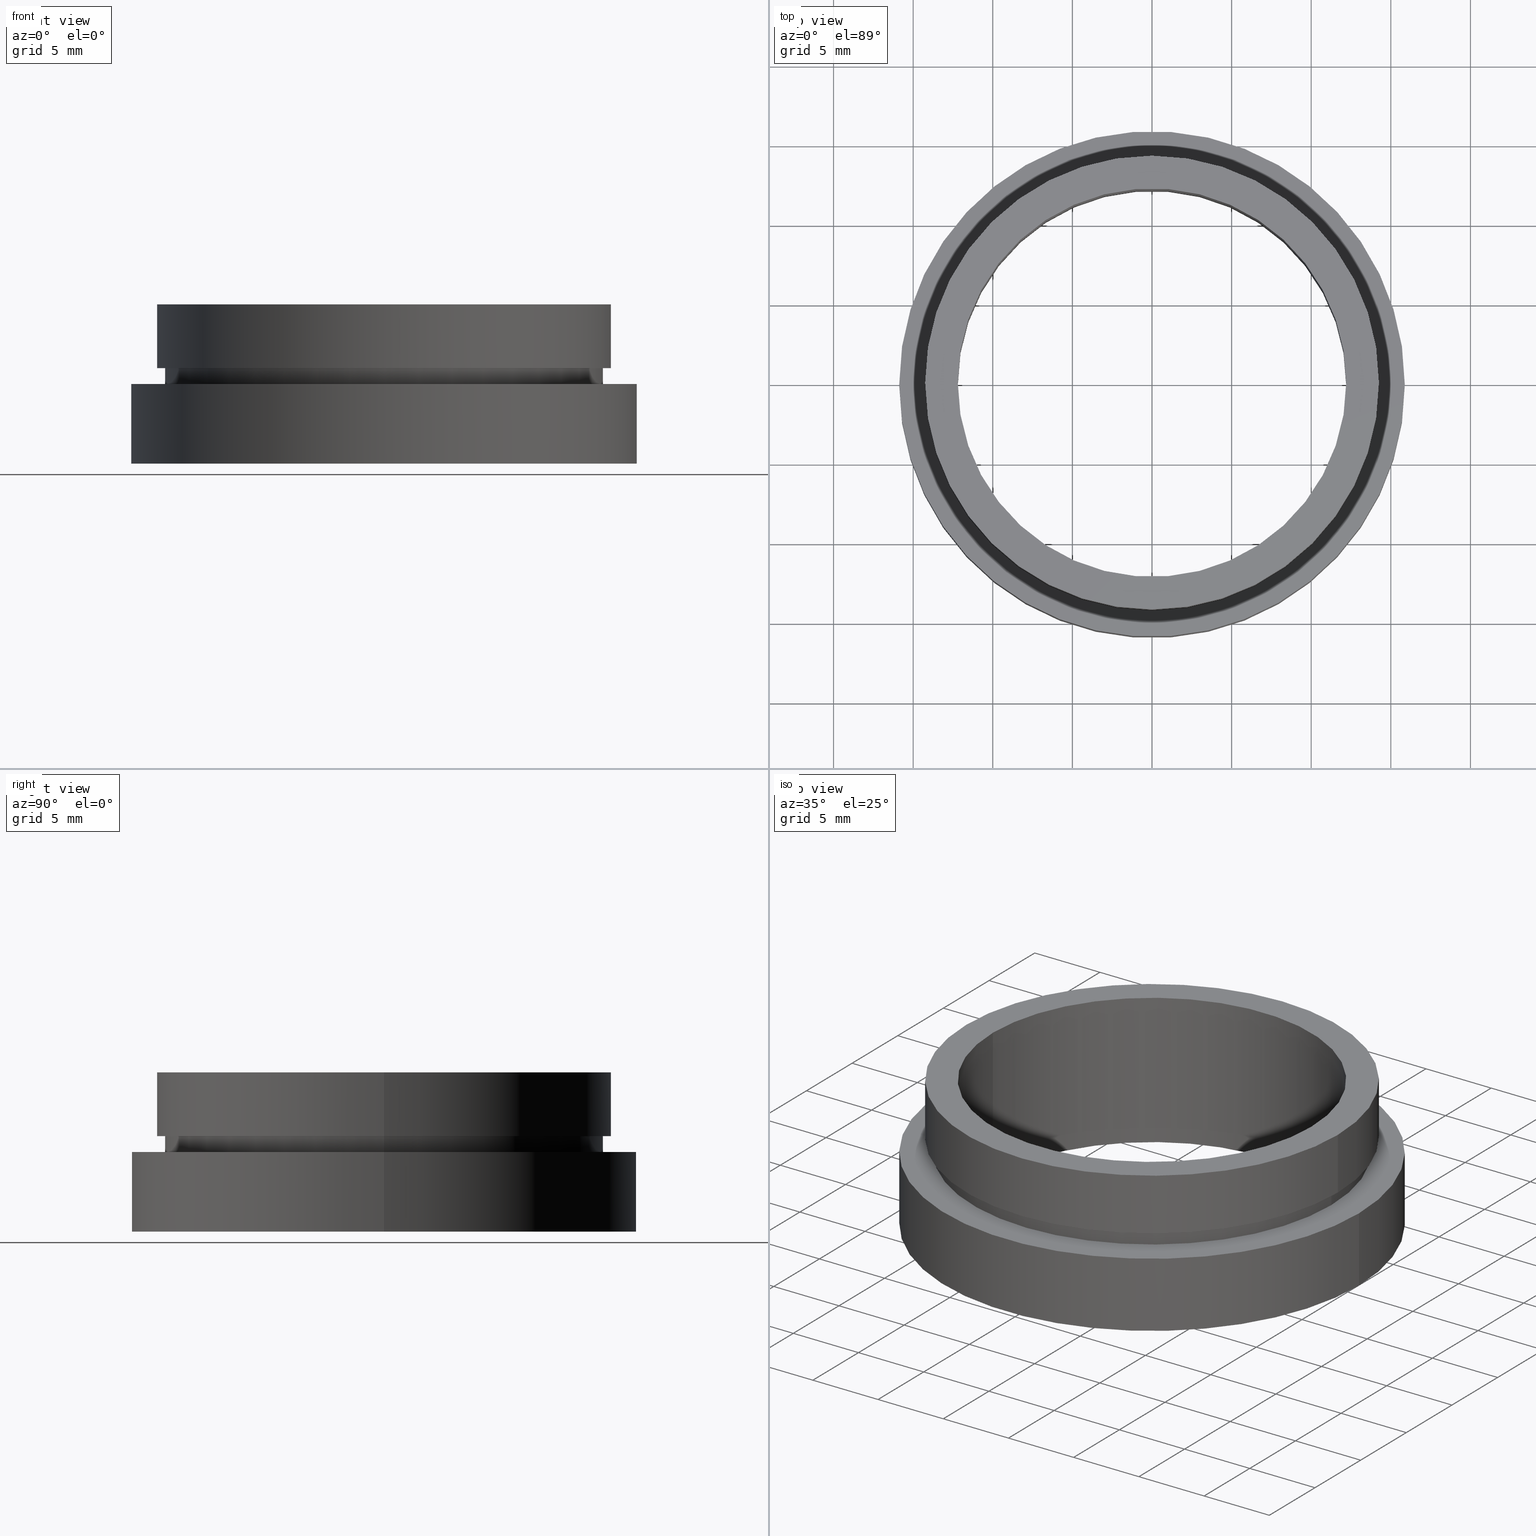
[diagram: canonical four-view strip — front | top / right | iso, engineering-drawing reading convention]
A machine part, canonical four-view strip (front | top / right | iso — engineering-drawing reading convention). The complete STEP part file that produces these views, byte-faithful:
ISO-10303-21;
HEADER;
FILE_DESCRIPTION (( 'STEP AP214' ),
    '1' );
FILE_NAME ('504062.STEP',
    '2019-09-16T03:55:55',
    ( 'user' ),
    ( '΢���й�' ),
    'SwSTEP 2.0',
    'SolidWorks 2016',
    '' );
FILE_SCHEMA (( 'AUTOMOTIVE_DESIGN' ));
ENDSEC;

DATA;
#1 = ADVANCED_FACE ( 'NONE', ( #73 ), #62, .T. ) ;
#2 = EDGE_LOOP ( 'NONE', ( #157, #179, #164, #184 ) ) ;
#3 = CARTESIAN_POINT ( 'NONE',  ( 13.75000000000000400, 1.683889348827611200E-015, -5.000000000000000900 ) ) ;
#4 =( GEOMETRIC_REPRESENTATION_CONTEXT ( 3 ) GLOBAL_UNCERTAINTY_ASSIGNED_CONTEXT ( ( #98 ) ) GLOBAL_UNIT_ASSIGNED_CONTEXT ( ( #260, #259, #276 ) ) REPRESENTATION_CONTEXT ( 'NONE', 'WORKASPACE' ) );
#5 =( GEOMETRIC_REPRESENTATION_CONTEXT ( 3 ) GLOBAL_UNCERTAINTY_ASSIGNED_CONTEXT ( ( #13 ) ) GLOBAL_UNIT_ASSIGNED_CONTEXT ( ( #56, #79, #415 ) ) REPRESENTATION_CONTEXT ( 'NONE', 'WORKASPACE' ) );
#6 = ORIENTED_EDGE ( 'NONE', *, *, #264, .T. ) ;
#7 = PRESENTATION_LAYER_ASSIGNMENT (  '', '', ( #180 ) ) ;
#8 = CIRCLE ( 'NONE', #258, 14.25000000000000400 ) ;
#9 = ORIENTED_EDGE ( 'NONE', *, *, #334, .T. ) ;
#10 = CYLINDRICAL_SURFACE ( 'NONE', #194, 12.20000000000000100 ) ;
#11 = CARTESIAN_POINT ( 'NONE',  ( 12.20000000000000100, 1.494069094959771100E-015, -19.14057971014493000 ) ) ;
#12 = ADVANCED_FACE ( 'NONE', ( #68, #54 ), #316, .F. ) ;
#13 = UNCERTAINTY_MEASURE_WITH_UNIT (LENGTH_MEASURE( 1.000000000000000100E-005 ), #56, 'distance_accuracy_value', 'NONE');
#14 = FACE_OUTER_BOUND ( 'NONE', #2, .T. ) ;
#15 = CARTESIAN_POINT ( 'NONE',  ( -15.87500000000000000, 0.0000000000000000000, -10.00000000000000000 ) ) ;
#16 = EDGE_LOOP ( 'NONE', ( #151, #156, #163, #170 ) ) ;
#17 = AXIS2_PLACEMENT_3D ( 'NONE', #297, #355, #237 ) ;
#18 = CARTESIAN_POINT ( 'NONE',  ( 0.0000000000000000000, 0.0000000000000000000, 0.0000000000000000000 ) ) ;
#19 = DIRECTION ( 'NONE',  ( 1.000000000000000000, 0.0000000000000000000, -0.0000000000000000000 ) ) ;
#20 = DIRECTION ( 'NONE',  ( -1.000000000000000000, 0.0000000000000000000, 0.0000000000000000000 ) ) ;
#21 = FILL_AREA_STYLE ('',( #343 ) ) ;
#22 = VERTEX_POINT ( 'NONE', #3 ) ;
#23 = FACE_BOUND ( 'NONE', #214, .T. ) ;
#24 =( LENGTH_UNIT ( ) NAMED_UNIT ( * ) SI_UNIT ( .MILLI., .METRE. ) );
#25 = LINE ( 'NONE', #352, #423 ) ;
#26 = AXIS2_PLACEMENT_3D ( 'NONE', #91, #193, #238 ) ;
#27 = ORIENTED_EDGE ( 'NONE', *, *, #162, .T. ) ;
#28 = DIRECTION ( 'NONE',  ( -0.0000000000000000000, -0.0000000000000000000, -1.000000000000000000 ) ) ;
#29 = CARTESIAN_POINT ( 'NONE',  ( 15.87500000000000000, 0.0000000000000000000, -10.00000000000000000 ) ) ;
#30 = FILL_AREA_STYLE_COLOUR ( '', #228 ) ;
#31 = CYLINDRICAL_SURFACE ( 'NONE', #36, 12.20000000000000100 ) ;
#32 = EDGE_CURVE ( 'NONE', #361, #99, #381, .T. ) ;
#33 = AXIS2_PLACEMENT_3D ( 'NONE', #75, #77, #338 ) ;
#34 = CARTESIAN_POINT ( 'NONE',  ( 13.75000000000000400, 0.0000000000000000000, -5.000000000000000000 ) ) ;
#35 = SURFACE_SIDE_STYLE ('',( #74 ) ) ;
#36 = AXIS2_PLACEMENT_3D ( 'NONE', #134, #405, #135 ) ;
#37 = ADVANCED_FACE ( 'NONE', ( #226 ), #234, .T. ) ;
#38 = CARTESIAN_POINT ( 'NONE',  ( 0.0000000000000000000, 0.0000000000000000000, -19.14057971014493000 ) ) ;
#39 = VERTEX_POINT ( 'NONE', #15 ) ;
#40 = PRODUCT_DEFINITION_SHAPE ( 'NONE', 'NONE',  #70 ) ;
#41 = EDGE_LOOP ( 'NONE', ( #152, #271, #89, #101 ) ) ;
#42 = AXIS2_PLACEMENT_3D ( 'NONE', #245, #97, #418 ) ;
#43 = AXIS2_PLACEMENT_3D ( 'NONE', #274, #128, #323 ) ;
#44 = ORIENTED_EDGE ( 'NONE', *, *, #399, .F. ) ;
#45 = ORIENTED_EDGE ( 'NONE', *, *, #386, .T. ) ;
#46 = FACE_BOUND ( 'NONE', #106, .T. ) ;
#47 = CARTESIAN_POINT ( 'NONE',  ( -14.25000000000000400, 0.0000000000000000000, -19.14057971014493000 ) ) ;
#48 = COLOUR_RGB ( '',1.000000000000000000, 1.000000000000000000, 1.000000000000000000 ) ;
#49 = DIRECTION ( 'NONE',  ( -1.000000000000000000, 0.0000000000000000000, 0.0000000000000000000 ) ) ;
#50 = STYLED_ITEM ( 'NONE', ( #109 ), #305 ) ;
#51 = EDGE_LOOP ( 'NONE', ( #341, #58 ) ) ;
#52 = CARTESIAN_POINT ( 'NONE',  ( 15.87500000000000000, 1.944126793646423200E-015, -10.00000000000000000 ) ) ;
#53 = SURFACE_SIDE_STYLE ('',( #172 ) ) ;
#54 = FACE_OUTER_BOUND ( 'NONE', #78, .T. ) ;
#55 =( GEOMETRIC_REPRESENTATION_CONTEXT ( 3 ) GLOBAL_UNCERTAINTY_ASSIGNED_CONTEXT ( ( #117 ) ) GLOBAL_UNIT_ASSIGNED_CONTEXT ( ( #396, #307, #242 ) ) REPRESENTATION_CONTEXT ( 'NONE', 'WORKASPACE' ) );
#56 =( LENGTH_UNIT ( ) NAMED_UNIT ( * ) SI_UNIT ( .MILLI., .METRE. ) );
#57 = DIRECTION ( 'NONE',  ( -0.0000000000000000000, -0.0000000000000000000, -1.000000000000000000 ) ) ;
#58 = ORIENTED_EDGE ( 'NONE', *, *, #399, .T. ) ;
#59 = ADVANCED_BREP_SHAPE_REPRESENTATION ( '504062', ( #425, #64 ), #303 ) ;
#60 = SURFACE_STYLE_USAGE ( .BOTH. , #53 ) ;
#61 = DIRECTION ( 'NONE',  ( -0.0000000000000000000, -0.0000000000000000000, -1.000000000000000000 ) ) ;
#62 = CYLINDRICAL_SURFACE ( 'NONE', #411, 14.25000000000000400 ) ;
#63 = EDGE_CURVE ( 'NONE', #39, #367, #229, .T. ) ;
#64 = AXIS2_PLACEMENT_3D ( 'NONE', #395, #252, #189 ) ;
#65 = ADVANCED_FACE ( 'NONE', ( #420, #290 ), #419, .F. ) ;
#66 = DIRECTION ( 'NONE',  ( -0.0000000000000000000, -0.0000000000000000000, -1.000000000000000000 ) ) ;
#67 = SURFACE_SIDE_STYLE ('',( #298 ) ) ;
#68 = FACE_BOUND ( 'NONE', #203, .T. ) ;
#69 = CIRCLE ( 'NONE', #232, 12.20000000000000100 ) ;
#70 = PRODUCT_DEFINITION ( 'δ֪', '', #72, #394 ) ;
#71 = CARTESIAN_POINT ( 'NONE',  ( -12.20000000000000100, 0.0000000000000000000, -19.14057971014493000 ) ) ;
#72 = PRODUCT_DEFINITION_FORMATION_WITH_SPECIFIED_SOURCE ( '�κ�', '', #169, .NOT_KNOWN. ) ;
#73 = FACE_OUTER_BOUND ( 'NONE', #104, .T. ) ;
#74 = SURFACE_STYLE_FILL_AREA ( #21 ) ;
#75 = CARTESIAN_POINT ( 'NONE',  ( 0.0000000000000000000, 0.0000000000000000000, 0.0000000000000000000 ) ) ;
#76 = AXIS2_PLACEMENT_3D ( 'NONE', #29, #144, #246 ) ;
#77 = DIRECTION ( 'NONE',  ( -0.0000000000000000000, -0.0000000000000000000, -1.000000000000000000 ) ) ;
#78 = EDGE_LOOP ( 'NONE', ( #390, #397 ) ) ;
#79 =( NAMED_UNIT ( * ) PLANE_ANGLE_UNIT ( ) SI_UNIT ( $, .RADIAN. ) );
#80 = VERTEX_POINT ( 'NONE', #141 ) ;
#81 = CIRCLE ( 'NONE', #412, 13.75000000000000400 ) ;
#82 = SURFACE_STYLE_FILL_AREA ( #432 ) ;
#83 = VECTOR ( 'NONE', #304, 1000.000000000000000 ) ;
#84 = DIRECTION ( 'NONE',  ( -1.000000000000000000, 0.0000000000000000000, 0.0000000000000000000 ) ) ;
#85 = DIRECTION ( 'NONE',  ( -1.000000000000000000, 0.0000000000000000000, 0.0000000000000000000 ) ) ;
#86 = PRODUCT_RELATED_PRODUCT_CATEGORY ( 'part', '', ( #169 ) ) ;
#87 = EDGE_CURVE ( 'NONE', #391, #363, #414, .T. ) ;
#88 = LINE ( 'NONE', #375, #340 ) ;
#89 = ORIENTED_EDGE ( 'NONE', *, *, #207, .T. ) ;
#90 = FACE_OUTER_BOUND ( 'NONE', #51, .T. ) ;
#91 = CARTESIAN_POINT ( 'NONE',  ( 0.0000000000000000000, 0.0000000000000000000, -10.00000000000000000 ) ) ;
#92 = ORIENTED_EDGE ( 'NONE', *, *, #336, .T. ) ;
#93 = CARTESIAN_POINT ( 'NONE',  ( 0.0000000000000000000, 0.0000000000000000000, -19.14057971014493000 ) ) ;
#94 = ORIENTED_EDGE ( 'NONE', *, *, #356, .T. ) ;
#95 = DIRECTION ( 'NONE',  ( -0.0000000000000000000, -0.0000000000000000000, -1.000000000000000000 ) ) ;
#96 = CARTESIAN_POINT ( 'NONE',  ( 14.25000000000000400, 1.745121688784978600E-015, -4.000000000000000000 ) ) ;
#97 = DIRECTION ( 'NONE',  ( -0.0000000000000000000, -0.0000000000000000000, -1.000000000000000000 ) ) ;
#98 = UNCERTAINTY_MEASURE_WITH_UNIT (LENGTH_MEASURE( 1.000000000000000100E-005 ), #260, 'distance_accuracy_value', 'NONE');
#99 = VERTEX_POINT ( 'NONE', #224 ) ;
#100 = ADVANCED_FACE ( 'NONE', ( #376 ), #357, .T. ) ;
#101 = ORIENTED_EDGE ( 'NONE', *, *, #199, .T. ) ;
#102 = DIRECTION ( 'NONE',  ( -0.0000000000000000000, -0.0000000000000000000, -1.000000000000000000 ) ) ;
#103 = EDGE_CURVE ( 'NONE', #363, #391, #402, .T. ) ;
#104 = EDGE_LOOP ( 'NONE', ( #171, #181, #200, #219 ) ) ;
#105 = DIRECTION ( 'NONE',  ( 0.0000000000000000000, 0.0000000000000000000, 1.000000000000000000 ) ) ;
#106 = EDGE_LOOP ( 'NONE', ( #138, #327 ) ) ;
#107 = DIRECTION ( 'NONE',  ( -0.0000000000000000000, -0.0000000000000000000, -1.000000000000000000 ) ) ;
#108 = CARTESIAN_POINT ( 'NONE',  ( 14.25000000000000400, 0.0000000000000000000, -4.000000000000000000 ) ) ;
#109 = PRESENTATION_STYLE_ASSIGNMENT (( #60 ) ) ;
#110 = FILL_AREA_STYLE_COLOUR ( '', #308 ) ;
#111 = PRESENTATION_LAYER_ASSIGNMENT (  '', '', ( #158 ) ) ;
#112 = DIRECTION ( 'NONE',  ( -0.0000000000000000000, -0.0000000000000000000, -1.000000000000000000 ) ) ;
#113 = DIRECTION ( 'NONE',  ( -0.0000000000000000000, -0.0000000000000000000, -1.000000000000000000 ) ) ;
#114 = VERTEX_POINT ( 'NONE', #145 ) ;
#115 = MECHANICAL_DESIGN_GEOMETRIC_PRESENTATION_REPRESENTATION (  '', ( #158 ), #5 ) ;
#116 = DIRECTION ( 'NONE',  ( -0.0000000000000000000, -0.0000000000000000000, -1.000000000000000000 ) ) ;
#117 = UNCERTAINTY_MEASURE_WITH_UNIT (LENGTH_MEASURE( 1.000000000000000100E-005 ), #396, 'distance_accuracy_value', 'NONE');
#118 = CARTESIAN_POINT ( 'NONE',  ( 0.0000000000000000000, 0.0000000000000000000, -5.000000000000000900 ) ) ;
#119 = CARTESIAN_POINT ( 'NONE',  ( -13.75000000000000400, 0.0000000000000000000, -5.000000000000000900 ) ) ;
#120 = CARTESIAN_POINT ( 'NONE',  ( 12.20000000000000100, 1.494069094959771100E-015, 0.0000000000000000000 ) ) ;
#121 = VERTEX_POINT ( 'NONE', #119 ) ;
#122 = ORIENTED_EDGE ( 'NONE', *, *, #294, .T. ) ;
#123 = ORIENTED_EDGE ( 'NONE', *, *, #336, .F. ) ;
#124 = FILL_AREA_STYLE ('',( #262 ) ) ;
#125 = COLOUR_RGB ( '',1.000000000000000000, 1.000000000000000000, 1.000000000000000000 ) ;
#126 = DIRECTION ( 'NONE',  ( -1.000000000000000000, 0.0000000000000000000, 0.0000000000000000000 ) ) ;
#127 = DIRECTION ( 'NONE',  ( -0.0000000000000000000, -0.0000000000000000000, -1.000000000000000000 ) ) ;
#128 = DIRECTION ( 'NONE',  ( -0.0000000000000000000, -0.0000000000000000000, -1.000000000000000000 ) ) ;
#129 = CARTESIAN_POINT ( 'NONE',  ( -12.20000000000000100, 0.0000000000000000000, 0.0000000000000000000 ) ) ;
#130 = VERTEX_POINT ( 'NONE', #137 ) ;
#131 =( NAMED_UNIT ( * ) SI_UNIT ( $, .STERADIAN. ) SOLID_ANGLE_UNIT ( ) );
#132 = VERTEX_POINT ( 'NONE', #129 ) ;
#133 = VECTOR ( 'NONE', #178, 1000.000000000000000 ) ;
#134 = CARTESIAN_POINT ( 'NONE',  ( 0.0000000000000000000, 0.0000000000000000000, -19.14057971014493000 ) ) ;
#135 = DIRECTION ( 'NONE',  ( -1.000000000000000000, 0.0000000000000000000, 0.0000000000000000000 ) ) ;
#136 = EDGE_CURVE ( 'NONE', #22, #121, #81, .T. ) ;
#137 = CARTESIAN_POINT ( 'NONE',  ( -14.25000000000000400, 0.0000000000000000000, 0.0000000000000000000 ) ) ;
#138 = ORIENTED_EDGE ( 'NONE', *, *, #199, .F. ) ;
#139 = ORIENTED_EDGE ( 'NONE', *, *, #300, .F. ) ;
#140 = APPLICATION_PROTOCOL_DEFINITION ( 'draft international standard', 'automotive_design', 1998, #393 ) ;
#141 = CARTESIAN_POINT ( 'NONE',  ( 12.20000000000000100, 1.494069094959771100E-015, -10.00000000000000000 ) ) ;
#142 = CARTESIAN_POINT ( 'NONE',  ( 15.87500000000000000, 1.944126793646423200E-015, -5.000000000000000900 ) ) ;
#143 = ORIENTED_EDGE ( 'NONE', *, *, #289, .T. ) ;
#144 = DIRECTION ( 'NONE',  ( 0.0000000000000000000, 0.0000000000000000000, 1.000000000000000000 ) ) ;
#145 = CARTESIAN_POINT ( 'NONE',  ( -12.20000000000000100, 0.0000000000000000000, -10.00000000000000000 ) ) ;
#146 = EDGE_LOOP ( 'NONE', ( #221, #209 ) ) ;
#147 = AXIS2_PLACEMENT_3D ( 'NONE', #288, #240, #360 ) ;
#148 = ORIENTED_EDGE ( 'NONE', *, *, #207, .F. ) ;
#149 = LINE ( 'NONE', #301, #250 ) ;
#150 = ADVANCED_FACE ( 'NONE', ( #239, #23 ), #342, .F. ) ;
#151 = ORIENTED_EDGE ( 'NONE', *, *, #103, .T. ) ;
#152 = ORIENTED_EDGE ( 'NONE', *, *, #294, .F. ) ;
#153 = EDGE_LOOP ( 'NONE', ( #123, #122, #143, #148 ) ) ;
#154 = LINE ( 'NONE', #218, #83 ) ;
#155 = MECHANICAL_DESIGN_GEOMETRIC_PRESENTATION_REPRESENTATION (  '', ( #50 ), #185 ) ;
#156 = ORIENTED_EDGE ( 'NONE', *, *, #220, .T. ) ;
#157 = ORIENTED_EDGE ( 'NONE', *, *, #421, .T. ) ;
#158 = STYLED_ITEM ( 'NONE', ( #278 ), #1 ) ;
#159 = DIRECTION ( 'NONE',  ( -0.0000000000000000000, -0.0000000000000000000, -1.000000000000000000 ) ) ;
#160 = MECHANICAL_DESIGN_GEOMETRIC_PRESENTATION_REPRESENTATION (  '', ( #180 ), #4 ) ;
#161 = DIRECTION ( 'NONE',  ( -1.000000000000000000, 0.0000000000000000000, 0.0000000000000000000 ) ) ;
#162 = EDGE_CURVE ( 'NONE', #130, #196, #284, .T. ) ;
#163 = ORIENTED_EDGE ( 'NONE', *, *, #63, .F. ) ;
#164 = ORIENTED_EDGE ( 'NONE', *, *, #374, .F. ) ;
#165 = APPLICATION_PROTOCOL_DEFINITION ( 'draft international standard', 'automotive_design', 1998, #377 ) ;
#166 = AXIS2_PLACEMENT_3D ( 'NONE', #353, #113, #84 ) ;
#167 = COLOUR_RGB ( '',1.000000000000000000, 1.000000000000000000, 1.000000000000000000 ) ;
#168 =( NAMED_UNIT ( * ) PLANE_ANGLE_UNIT ( ) SI_UNIT ( $, .RADIAN. ) );
#169 = PRODUCT ( '504062', '504062', '', ( #216 ) ) ;
#170 = ORIENTED_EDGE ( 'NONE', *, *, #386, .F. ) ;
#171 = ORIENTED_EDGE ( 'NONE', *, *, #217, .T. ) ;
#172 = SURFACE_STYLE_FILL_AREA ( #124 ) ;
#173 = PRESENTATION_LAYER_ASSIGNMENT (  '', '', ( #50 ) ) ;
#174 =( LENGTH_UNIT ( ) NAMED_UNIT ( * ) SI_UNIT ( .MILLI., .METRE. ) );
#175 = FACE_OUTER_BOUND ( 'NONE', #153, .T. ) ;
#176 = CARTESIAN_POINT ( 'NONE',  ( 0.0000000000000000000, 0.0000000000000000000, -10.00000000000000000 ) ) ;
#177 = DIRECTION ( 'NONE',  ( -0.0000000000000000000, 0.0000000000000000000, -1.000000000000000000 ) ) ;
#178 = DIRECTION ( 'NONE',  ( -0.0000000000000000000, -0.0000000000000000000, -1.000000000000000000 ) ) ;
#179 = ORIENTED_EDGE ( 'NONE', *, *, #406, .T. ) ;
#180 = STYLED_ITEM ( 'NONE', ( #257 ), #100 ) ;
#181 = ORIENTED_EDGE ( 'NONE', *, *, #300, .T. ) ;
#182 = LINE ( 'NONE', #223, #318 ) ;
#183 = CARTESIAN_POINT ( 'NONE',  ( 14.25000000000000400, 1.745121688784978600E-015, 0.0000000000000000000 ) ) ;
#184 = ORIENTED_EDGE ( 'NONE', *, *, #356, .F. ) ;
#185 =( GEOMETRIC_REPRESENTATION_CONTEXT ( 3 ) GLOBAL_UNCERTAINTY_ASSIGNED_CONTEXT ( ( #382 ) ) GLOBAL_UNIT_ASSIGNED_CONTEXT ( ( #24, #168, #354 ) ) REPRESENTATION_CONTEXT ( 'NONE', 'WORKASPACE' ) );
#186 = CARTESIAN_POINT ( 'NONE',  ( 0.0000000000000000000, 0.0000000000000000000, -4.000000000000000000 ) ) ;
#187 = DIRECTION ( 'NONE',  ( -1.000000000000000000, 0.0000000000000000000, 0.0000000000000000000 ) ) ;
#188 = AXIS2_PLACEMENT_3D ( 'NONE', #186, #107, #187 ) ;
#189 = DIRECTION ( 'NONE',  ( 1.000000000000000000, 0.0000000000000000000, 0.0000000000000000000 ) ) ;
#190 = EDGE_LOOP ( 'NONE', ( #392, #208, #94, #429 ) ) ;
#191 = CARTESIAN_POINT ( 'NONE',  ( 0.0000000000000000000, 0.0000000000000000000, -5.000000000000000900 ) ) ;
#192 = ADVANCED_FACE ( 'NONE', ( #14 ), #302, .T. ) ;
#193 = DIRECTION ( 'NONE',  ( -0.0000000000000000000, -0.0000000000000000000, -1.000000000000000000 ) ) ;
#194 = AXIS2_PLACEMENT_3D ( 'NONE', #93, #270, #161 ) ;
#195 = UNCERTAINTY_MEASURE_WITH_UNIT (LENGTH_MEASURE( 1.000000000000000100E-005 ), #299, 'distance_accuracy_value', 'NONE');
#196 = VERTEX_POINT ( 'NONE', #247 ) ;
#197 = AXIS2_PLACEMENT_3D ( 'NONE', #325, #57, #322 ) ;
#198 = DIRECTION ( 'NONE',  ( -0.0000000000000000000, -0.0000000000000000000, -1.000000000000000000 ) ) ;
#199 = EDGE_CURVE ( 'NONE', #114, #80, #326, .T. ) ;
#200 = ORIENTED_EDGE ( 'NONE', *, *, #253, .F. ) ;
#201 =( NAMED_UNIT ( * ) PLANE_ANGLE_UNIT ( ) SI_UNIT ( $, .RADIAN. ) );
#202 = AXIS2_PLACEMENT_3D ( 'NONE', #403, #177, #231 ) ;
#203 = EDGE_LOOP ( 'NONE', ( #401, #398 ) ) ;
#204 = CIRCLE ( 'NONE', #147, 14.25000000000000400 ) ;
#205 = AXIS2_PLACEMENT_3D ( 'NONE', #38, #66, #230 ) ;
#206 = ADVANCED_FACE ( 'NONE', ( #309 ), #31, .F. ) ;
#207 = EDGE_CURVE ( 'NONE', #132, #114, #285, .T. ) ;
#208 = ORIENTED_EDGE ( 'NONE', *, *, #32, .T. ) ;
#209 = ORIENTED_EDGE ( 'NONE', *, *, #334, .F. ) ;
#210 = EDGE_LOOP ( 'NONE', ( #139, #9, #27, #222 ) ) ;
#211 = DIRECTION ( 'NONE',  ( -0.0000000000000000000, -0.0000000000000000000, -1.000000000000000000 ) ) ;
#212 = PLANE ( 'NONE',  #76 ) ;
#213 = AXIS2_PLACEMENT_3D ( 'NONE', #324, #61, #126 ) ;
#214 = EDGE_LOOP ( 'NONE', ( #428, #426 ) ) ;
#215 = ORIENTED_EDGE ( 'NONE', *, *, #103, .F. ) ;
#216 = PRODUCT_CONTEXT ( 'NONE', #393, 'mechanical' ) ;
#217 = EDGE_CURVE ( 'NONE', #130, #261, #8, .T. ) ;
#218 = CARTESIAN_POINT ( 'NONE',  ( 13.75000000000000400, 1.683889348827611200E-015, -19.14057971014493000 ) ) ;
#219 = ORIENTED_EDGE ( 'NONE', *, *, #162, .F. ) ;
#220 = EDGE_CURVE ( 'NONE', #391, #367, #88, .T. ) ;
#221 = ORIENTED_EDGE ( 'NONE', *, *, #217, .F. ) ;
#222 = ORIENTED_EDGE ( 'NONE', *, *, #329, .F. ) ;
#223 = CARTESIAN_POINT ( 'NONE',  ( -13.75000000000000400, 0.0000000000000000000, -19.14057971014493000 ) ) ;
#224 = CARTESIAN_POINT ( 'NONE',  ( -13.75000000000000400, 0.0000000000000000000, -4.000000000000000000 ) ) ;
#225 = AXIS2_PLACEMENT_3D ( 'NONE', #108, #105, #19 ) ;
#226 = FACE_OUTER_BOUND ( 'NONE', #190, .T. ) ;
#227 =( GEOMETRIC_REPRESENTATION_CONTEXT ( 3 ) GLOBAL_UNCERTAINTY_ASSIGNED_CONTEXT ( ( #195 ) ) GLOBAL_UNIT_ASSIGNED_CONTEXT ( ( #299, #201, #233 ) ) REPRESENTATION_CONTEXT ( 'NONE', 'WORKASPACE' ) );
#228 = COLOUR_RGB ( '',1.000000000000000000, 1.000000000000000000, 1.000000000000000000 ) ;
#229 = CIRCLE ( 'NONE', #281, 15.87500000000000000 ) ;
#230 = DIRECTION ( 'NONE',  ( -1.000000000000000000, 0.0000000000000000000, 0.0000000000000000000 ) ) ;
#231 = DIRECTION ( 'NONE',  ( -1.000000000000000000, 0.0000000000000000000, 0.0000000000000000000 ) ) ;
#232 = AXIS2_PLACEMENT_3D ( 'NONE', #18, #116, #368 ) ;
#233 =( NAMED_UNIT ( * ) SI_UNIT ( $, .STERADIAN. ) SOLID_ANGLE_UNIT ( ) );
#234 = CYLINDRICAL_SURFACE ( 'NONE', #213, 13.75000000000000400 ) ;
#235 = PRESENTATION_LAYER_ASSIGNMENT (  '', '', ( #351 ) ) ;
#236 = DIRECTION ( 'NONE',  ( -1.000000000000000000, 0.0000000000000000000, 0.0000000000000000000 ) ) ;
#237 = DIRECTION ( 'NONE',  ( -1.000000000000000000, 0.0000000000000000000, 0.0000000000000000000 ) ) ;
#238 = DIRECTION ( 'NONE',  ( -1.000000000000000000, 0.0000000000000000000, 0.0000000000000000000 ) ) ;
#239 = FACE_OUTER_BOUND ( 'NONE', #366, .T. ) ;
#240 = DIRECTION ( 'NONE',  ( -0.0000000000000000000, -0.0000000000000000000, -1.000000000000000000 ) ) ;
#241 = VERTEX_POINT ( 'NONE', #120 ) ;
#242 =( NAMED_UNIT ( * ) SI_UNIT ( $, .STERADIAN. ) SOLID_ANGLE_UNIT ( ) );
#243 = MECHANICAL_DESIGN_GEOMETRIC_PRESENTATION_REPRESENTATION (  '', ( #351 ), #227 ) ;
#244 = DIRECTION ( 'NONE',  ( -0.0000000000000000000, -0.0000000000000000000, -1.000000000000000000 ) ) ;
#245 = CARTESIAN_POINT ( 'NONE',  ( 0.0000000000000000000, 0.0000000000000000000, -4.000000000000000000 ) ) ;
#246 = DIRECTION ( 'NONE',  ( 1.000000000000000000, 0.0000000000000000000, -0.0000000000000000000 ) ) ;
#247 = CARTESIAN_POINT ( 'NONE',  ( -14.25000000000000400, 0.0000000000000000000, -4.000000000000000000 ) ) ;
#248 = SURFACE_STYLE_FILL_AREA ( #283 ) ;
#249 = DIRECTION ( 'NONE',  ( -1.000000000000000000, 0.0000000000000000000, 0.0000000000000000000 ) ) ;
#250 = VECTOR ( 'NONE', #198, 1000.000000000000000 ) ;
#251 = DIRECTION ( 'NONE',  ( -1.000000000000000000, 0.0000000000000000000, 0.0000000000000000000 ) ) ;
#252 = DIRECTION ( 'NONE',  ( 0.0000000000000000000, 0.0000000000000000000, 1.000000000000000000 ) ) ;
#253 = EDGE_CURVE ( 'NONE', #196, #387, #380, .T. ) ;
#254 = SURFACE_STYLE_USAGE ( .BOTH. , #379 ) ;
#255 = SURFACE_STYLE_USAGE ( .BOTH. , #67 ) ;
#256 = CIRCLE ( 'NONE', #26, 12.20000000000000100 ) ;
#257 = PRESENTATION_STYLE_ASSIGNMENT (( #254 ) ) ;
#258 = AXIS2_PLACEMENT_3D ( 'NONE', #371, #159, #49 ) ;
#259 =( NAMED_UNIT ( * ) PLANE_ANGLE_UNIT ( ) SI_UNIT ( $, .RADIAN. ) );
#260 =( LENGTH_UNIT ( ) NAMED_UNIT ( * ) SI_UNIT ( .MILLI., .METRE. ) );
#261 = VERTEX_POINT ( 'NONE', #183 ) ;
#262 = FILL_AREA_STYLE_COLOUR ( '', #125 ) ;
#263 = CIRCLE ( 'NONE', #337, 13.75000000000000400 ) ;
#264 = EDGE_CURVE ( 'NONE', #132, #241, #317, .T. ) ;
#265 = CARTESIAN_POINT ( 'NONE',  ( 0.0000000000000000000, 0.0000000000000000000, -19.14057971014493000 ) ) ;
#266 = DIRECTION ( 'NONE',  ( -1.000000000000000000, 0.0000000000000000000, 0.0000000000000000000 ) ) ;
#267 = SURFACE_SIDE_STYLE ('',( #82 ) ) ;
#268 = SURFACE_STYLE_USAGE ( .BOTH. , #333 ) ;
#269 = MECHANICAL_DESIGN_GEOMETRIC_PRESENTATION_REPRESENTATION (  '', ( #275 ), #55 ) ;
#270 = DIRECTION ( 'NONE',  ( -0.0000000000000000000, -0.0000000000000000000, -1.000000000000000000 ) ) ;
#271 = ORIENTED_EDGE ( 'NONE', *, *, #264, .F. ) ;
#272 = ADVANCED_FACE ( 'NONE', ( #279 ), #430, .T. ) ;
#273 = PRESENTATION_LAYER_ASSIGNMENT (  '', '', ( #275 ) ) ;
#274 = CARTESIAN_POINT ( 'NONE',  ( 0.0000000000000000000, 0.0000000000000000000, -5.000000000000000900 ) ) ;
#275 = STYLED_ITEM ( 'NONE', ( #320 ), #59 ) ;
#276 =( NAMED_UNIT ( * ) SI_UNIT ( $, .STERADIAN. ) SOLID_ANGLE_UNIT ( ) );
#277 = CARTESIAN_POINT ( 'NONE',  ( 0.0000000000000000000, 0.0000000000000000000, -10.00000000000000000 ) ) ;
#278 = PRESENTATION_STYLE_ASSIGNMENT (( #346 ) ) ;
#279 = FACE_OUTER_BOUND ( 'NONE', #372, .T. ) ;
#280 = FILL_AREA_STYLE_COLOUR ( '', #48 ) ;
#281 = AXIS2_PLACEMENT_3D ( 'NONE', #277, #291, #20 ) ;
#282 = AXIS2_PLACEMENT_3D ( 'NONE', #265, #359, #266 ) ;
#283 = FILL_AREA_STYLE ('',( #30 ) ) ;
#284 = LINE ( 'NONE', #47, #378 ) ;
#285 = LINE ( 'NONE', #71, #358 ) ;
#286 = CARTESIAN_POINT ( 'NONE',  ( 0.0000000000000000000, 0.0000000000000000000, -10.00000000000000000 ) ) ;
#287 =( LENGTH_UNIT ( ) NAMED_UNIT ( * ) SI_UNIT ( .MILLI., .METRE. ) );
#288 = CARTESIAN_POINT ( 'NONE',  ( 0.0000000000000000000, 0.0000000000000000000, 0.0000000000000000000 ) ) ;
#289 = EDGE_CURVE ( 'NONE', #80, #114, #256, .T. ) ;
#290 = FACE_BOUND ( 'NONE', #292, .T. ) ;
#291 = DIRECTION ( 'NONE',  ( -0.0000000000000000000, -0.0000000000000000000, -1.000000000000000000 ) ) ;
#292 = EDGE_LOOP ( 'NONE', ( #6, #92 ) ) ;
#293 = COLOUR_RGB ( '',1.000000000000000000, 1.000000000000000000, 1.000000000000000000 ) ;
#294 = EDGE_CURVE ( 'NONE', #241, #80, #348, .T. ) ;
#295 = DIRECTION ( 'NONE',  ( -0.0000000000000000000, -0.0000000000000000000, -1.000000000000000000 ) ) ;
#296 = CARTESIAN_POINT ( 'NONE',  ( 0.0000000000000000000, 0.0000000000000000000, -4.000000000000000000 ) ) ;
#297 = CARTESIAN_POINT ( 'NONE',  ( 0.0000000000000000000, 0.0000000000000000000, -19.14057971014493000 ) ) ;
#298 = SURFACE_STYLE_FILL_AREA ( #313 ) ;
#299 =( LENGTH_UNIT ( ) NAMED_UNIT ( * ) SI_UNIT ( .MILLI., .METRE. ) );
#300 = EDGE_CURVE ( 'NONE', #261, #387, #25, .T. ) ;
#301 = CARTESIAN_POINT ( 'NONE',  ( -15.87500000000000000, 0.0000000000000000000, -19.14057971014493000 ) ) ;
#302 = CYLINDRICAL_SURFACE ( 'NONE', #205, 13.75000000000000400 ) ;
#303 =( GEOMETRIC_REPRESENTATION_CONTEXT ( 3 ) GLOBAL_UNCERTAINTY_ASSIGNED_CONTEXT ( ( #408 ) ) GLOBAL_UNIT_ASSIGNED_CONTEXT ( ( #174, #385, #131 ) ) REPRESENTATION_CONTEXT ( 'NONE', 'WORKASPACE' ) );
#304 = DIRECTION ( 'NONE',  ( -0.0000000000000000000, -0.0000000000000000000, -1.000000000000000000 ) ) ;
#305 = ADVANCED_FACE ( 'NONE', ( #175 ), #10, .F. ) ;
#306 =( GEOMETRIC_REPRESENTATION_CONTEXT ( 3 ) GLOBAL_UNCERTAINTY_ASSIGNED_CONTEXT ( ( #331 ) ) GLOBAL_UNIT_ASSIGNED_CONTEXT ( ( #287, #345, #427 ) ) REPRESENTATION_CONTEXT ( 'NONE', 'WORKASPACE' ) );
#307 =( NAMED_UNIT ( * ) PLANE_ANGLE_UNIT ( ) SI_UNIT ( $, .RADIAN. ) );
#308 = COLOUR_RGB ( '',1.000000000000000000, 1.000000000000000000, 1.000000000000000000 ) ;
#309 = FACE_OUTER_BOUND ( 'NONE', #41, .T. ) ;
#310 = CYLINDRICAL_SURFACE ( 'NONE', #197, 15.87500000000000000 ) ;
#311 = MECHANICAL_DESIGN_GEOMETRIC_PRESENTATION_REPRESENTATION (  '', ( #332 ), #306 ) ;
#312 = FACE_OUTER_BOUND ( 'NONE', #16, .T. ) ;
#313 = FILL_AREA_STYLE ('',( #110 ) ) ;
#314 = AXIS2_PLACEMENT_3D ( 'NONE', #34, #319, #236 ) ;
#315 = PRESENTATION_STYLE_ASSIGNMENT (( #255 ) ) ;
#316 = PLANE ( 'NONE',  #225 ) ;
#317 = CIRCLE ( 'NONE', #33, 12.20000000000000100 ) ;
#318 = VECTOR ( 'NONE', #211, 1000.000000000000000 ) ;
#319 = DIRECTION ( 'NONE',  ( -0.0000000000000000000, 0.0000000000000000000, -1.000000000000000000 ) ) ;
#320 = PRESENTATION_STYLE_ASSIGNMENT (( #365 ) ) ;
#321 = PRESENTATION_LAYER_ASSIGNMENT (  '', '', ( #332 ) ) ;
#322 = DIRECTION ( 'NONE',  ( -1.000000000000000000, 0.0000000000000000000, 0.0000000000000000000 ) ) ;
#323 = DIRECTION ( 'NONE',  ( -1.000000000000000000, 0.0000000000000000000, 0.0000000000000000000 ) ) ;
#324 = CARTESIAN_POINT ( 'NONE',  ( 0.0000000000000000000, 0.0000000000000000000, -19.14057971014493000 ) ) ;
#325 = CARTESIAN_POINT ( 'NONE',  ( 0.0000000000000000000, 0.0000000000000000000, -19.14057971014493000 ) ) ;
#326 = CIRCLE ( 'NONE', #434, 12.20000000000000100 ) ;
#327 = ORIENTED_EDGE ( 'NONE', *, *, #289, .F. ) ;
#328 = SHAPE_DEFINITION_REPRESENTATION ( #40, #59 ) ;
#329 = EDGE_CURVE ( 'NONE', #387, #196, #335, .T. ) ;
#330 = CIRCLE ( 'NONE', #373, 13.75000000000000400 ) ;
#331 = UNCERTAINTY_MEASURE_WITH_UNIT (LENGTH_MEASURE( 1.000000000000000100E-005 ), #287, 'distance_accuracy_value', 'NONE');
#332 = STYLED_ITEM ( 'NONE', ( #416 ), #425 ) ;
#333 = SURFACE_SIDE_STYLE ('',( #431 ) ) ;
#334 = EDGE_CURVE ( 'NONE', #261, #130, #204, .T. ) ;
#335 = CIRCLE ( 'NONE', #166, 14.25000000000000400 ) ;
#336 = EDGE_CURVE ( 'NONE', #241, #132, #69, .T. ) ;
#337 = AXIS2_PLACEMENT_3D ( 'NONE', #296, #349, #364 ) ;
#338 = DIRECTION ( 'NONE',  ( -1.000000000000000000, 0.0000000000000000000, 0.0000000000000000000 ) ) ;
#339 = FILL_AREA_STYLE ('',( #280 ) ) ;
#340 = VECTOR ( 'NONE', #127, 1000.000000000000000 ) ;
#341 = ORIENTED_EDGE ( 'NONE', *, *, #63, .T. ) ;
#342 = PLANE ( 'NONE',  #314 ) ;
#343 = FILL_AREA_STYLE_COLOUR ( '', #293 ) ;
#344 = AXIS2_PLACEMENT_3D ( 'NONE', #286, #389, #384 ) ;
#345 =( NAMED_UNIT ( * ) PLANE_ANGLE_UNIT ( ) SI_UNIT ( $, .RADIAN. ) );
#346 = SURFACE_STYLE_USAGE ( .BOTH. , #35 ) ;
#347 = ADVANCED_FACE ( 'NONE', ( #312 ), #310, .T. ) ;
#348 = LINE ( 'NONE', #11, #133 ) ;
#349 = DIRECTION ( 'NONE',  ( -0.0000000000000000000, -0.0000000000000000000, -1.000000000000000000 ) ) ;
#350 = DIRECTION ( 'NONE',  ( -1.000000000000000000, 0.0000000000000000000, 0.0000000000000000000 ) ) ;
#351 = STYLED_ITEM ( 'NONE', ( #315 ), #206 ) ;
#352 = CARTESIAN_POINT ( 'NONE',  ( 14.25000000000000400, 1.745121688784978600E-015, -19.14057971014493000 ) ) ;
#353 = CARTESIAN_POINT ( 'NONE',  ( 0.0000000000000000000, 0.0000000000000000000, -4.000000000000000000 ) ) ;
#354 =( NAMED_UNIT ( * ) SI_UNIT ( $, .STERADIAN. ) SOLID_ANGLE_UNIT ( ) );
#355 = DIRECTION ( 'NONE',  ( -0.0000000000000000000, -0.0000000000000000000, -1.000000000000000000 ) ) ;
#356 = EDGE_CURVE ( 'NONE', #99, #121, #182, .T. ) ;
#357 = CYLINDRICAL_SURFACE ( 'NONE', #282, 14.25000000000000400 ) ;
#358 = VECTOR ( 'NONE', #417, 1000.000000000000000 ) ;
#359 = DIRECTION ( 'NONE',  ( -0.0000000000000000000, -0.0000000000000000000, -1.000000000000000000 ) ) ;
#360 = DIRECTION ( 'NONE',  ( -1.000000000000000000, 0.0000000000000000000, 0.0000000000000000000 ) ) ;
#361 = VERTEX_POINT ( 'NONE', #424 ) ;
#362 = CARTESIAN_POINT ( 'NONE',  ( -15.87500000000000000, 0.0000000000000000000, -5.000000000000000900 ) ) ;
#363 = VERTEX_POINT ( 'NONE', #362 ) ;
#364 = DIRECTION ( 'NONE',  ( -1.000000000000000000, 0.0000000000000000000, 0.0000000000000000000 ) ) ;
#365 = SURFACE_STYLE_USAGE ( .BOTH. , #267 ) ;
#366 = EDGE_LOOP ( 'NONE', ( #215, #404 ) ) ;
#367 = VERTEX_POINT ( 'NONE', #52 ) ;
#368 = DIRECTION ( 'NONE',  ( -1.000000000000000000, 0.0000000000000000000, 0.0000000000000000000 ) ) ;
#369 = CIRCLE ( 'NONE', #344, 15.87500000000000000 ) ;
#370 = ADVANCED_FACE ( 'NONE', ( #46, #90 ), #212, .F. ) ;
#371 = CARTESIAN_POINT ( 'NONE',  ( 0.0000000000000000000, 0.0000000000000000000, 0.0000000000000000000 ) ) ;
#372 = EDGE_LOOP ( 'NONE', ( #413, #409, #45, #44 ) ) ;
#373 = AXIS2_PLACEMENT_3D ( 'NONE', #191, #295, #410 ) ;
#374 = EDGE_CURVE ( 'NONE', #121, #22, #330, .T. ) ;
#375 = CARTESIAN_POINT ( 'NONE',  ( 15.87500000000000000, 1.944126793646423200E-015, -19.14057971014493000 ) ) ;
#376 = FACE_OUTER_BOUND ( 'NONE', #210, .T. ) ;
#377 = APPLICATION_CONTEXT ( 'automotive_design' ) ;
#378 = VECTOR ( 'NONE', #102, 1000.000000000000000 ) ;
#379 = SURFACE_SIDE_STYLE ('',( #248 ) ) ;
#380 = CIRCLE ( 'NONE', #188, 14.25000000000000400 ) ;
#381 = CIRCLE ( 'NONE', #42, 13.75000000000000400 ) ;
#382 = UNCERTAINTY_MEASURE_WITH_UNIT (LENGTH_MEASURE( 1.000000000000000100E-005 ), #24, 'distance_accuracy_value', 'NONE');
#383 = AXIS2_PLACEMENT_3D ( 'NONE', #422, #95, #85 ) ;
#384 = DIRECTION ( 'NONE',  ( -1.000000000000000000, 0.0000000000000000000, 0.0000000000000000000 ) ) ;
#385 =( NAMED_UNIT ( * ) PLANE_ANGLE_UNIT ( ) SI_UNIT ( $, .RADIAN. ) );
#386 = EDGE_CURVE ( 'NONE', #363, #39, #149, .T. ) ;
#387 = VERTEX_POINT ( 'NONE', #96 ) ;
#388 = DIRECTION ( 'NONE',  ( -0.0000000000000000000, -0.0000000000000000000, -1.000000000000000000 ) ) ;
#389 = DIRECTION ( 'NONE',  ( -0.0000000000000000000, -0.0000000000000000000, -1.000000000000000000 ) ) ;
#390 = ORIENTED_EDGE ( 'NONE', *, *, #253, .T. ) ;
#391 = VERTEX_POINT ( 'NONE', #142 ) ;
#392 = ORIENTED_EDGE ( 'NONE', *, *, #406, .F. ) ;
#393 = APPLICATION_CONTEXT ( 'automotive_design' ) ;
#394 = PRODUCT_DEFINITION_CONTEXT ( 'detailed design', #377, 'design' ) ;
#395 = CARTESIAN_POINT ( 'NONE',  ( 0.0000000000000000000, 0.0000000000000000000, 0.0000000000000000000 ) ) ;
#396 =( LENGTH_UNIT ( ) NAMED_UNIT ( * ) SI_UNIT ( .MILLI., .METRE. ) );
#397 = ORIENTED_EDGE ( 'NONE', *, *, #329, .T. ) ;
#398 = ORIENTED_EDGE ( 'NONE', *, *, #32, .F. ) ;
#399 = EDGE_CURVE ( 'NONE', #367, #39, #369, .T. ) ;
#400 = FILL_AREA_STYLE_COLOUR ( '', #167 ) ;
#401 = ORIENTED_EDGE ( 'NONE', *, *, #421, .F. ) ;
#402 = CIRCLE ( 'NONE', #43, 15.87500000000000000 ) ;
#403 = CARTESIAN_POINT ( 'NONE',  ( 12.20000000000000100, 0.0000000000000000000, 0.0000000000000000000 ) ) ;
#404 = ORIENTED_EDGE ( 'NONE', *, *, #87, .F. ) ;
#405 = DIRECTION ( 'NONE',  ( -0.0000000000000000000, -0.0000000000000000000, -1.000000000000000000 ) ) ;
#406 = EDGE_CURVE ( 'NONE', #361, #22, #154, .T. ) ;
#407 = CLOSED_SHELL ( 'NONE', ( #305, #347, #192, #1, #65, #100, #12, #37, #150, #272, #370, #206 ) ) ;
#408 = UNCERTAINTY_MEASURE_WITH_UNIT (LENGTH_MEASURE( 1.000000000000000100E-005 ), #174, 'distance_accuracy_value', 'NONE');
#409 = ORIENTED_EDGE ( 'NONE', *, *, #87, .T. ) ;
#410 = DIRECTION ( 'NONE',  ( -1.000000000000000000, 0.0000000000000000000, 0.0000000000000000000 ) ) ;
#411 = AXIS2_PLACEMENT_3D ( 'NONE', #433, #112, #350 ) ;
#412 = AXIS2_PLACEMENT_3D ( 'NONE', #118, #244, #251 ) ;
#413 = ORIENTED_EDGE ( 'NONE', *, *, #220, .F. ) ;
#414 = CIRCLE ( 'NONE', #383, 15.87500000000000000 ) ;
#415 =( NAMED_UNIT ( * ) SI_UNIT ( $, .STERADIAN. ) SOLID_ANGLE_UNIT ( ) );
#416 = PRESENTATION_STYLE_ASSIGNMENT (( #268 ) ) ;
#417 = DIRECTION ( 'NONE',  ( -0.0000000000000000000, -0.0000000000000000000, -1.000000000000000000 ) ) ;
#418 = DIRECTION ( 'NONE',  ( -1.000000000000000000, 0.0000000000000000000, 0.0000000000000000000 ) ) ;
#419 = PLANE ( 'NONE',  #202 ) ;
#420 = FACE_OUTER_BOUND ( 'NONE', #146, .T. ) ;
#421 = EDGE_CURVE ( 'NONE', #99, #361, #263, .T. ) ;
#422 = CARTESIAN_POINT ( 'NONE',  ( 0.0000000000000000000, 0.0000000000000000000, -5.000000000000000900 ) ) ;
#423 = VECTOR ( 'NONE', #28, 1000.000000000000000 ) ;
#424 = CARTESIAN_POINT ( 'NONE',  ( 13.75000000000000400, 1.683889348827611200E-015, -4.000000000000000000 ) ) ;
#425 = MANIFOLD_SOLID_BREP ( '��ת1', #407 ) ;
#426 = ORIENTED_EDGE ( 'NONE', *, *, #136, .T. ) ;
#427 =( NAMED_UNIT ( * ) SI_UNIT ( $, .STERADIAN. ) SOLID_ANGLE_UNIT ( ) );
#428 = ORIENTED_EDGE ( 'NONE', *, *, #374, .T. ) ;
#429 = ORIENTED_EDGE ( 'NONE', *, *, #136, .F. ) ;
#430 = CYLINDRICAL_SURFACE ( 'NONE', #17, 15.87500000000000000 ) ;
#431 = SURFACE_STYLE_FILL_AREA ( #339 ) ;
#432 = FILL_AREA_STYLE ('',( #400 ) ) ;
#433 = CARTESIAN_POINT ( 'NONE',  ( 0.0000000000000000000, 0.0000000000000000000, -19.14057971014493000 ) ) ;
#434 = AXIS2_PLACEMENT_3D ( 'NONE', #176, #388, #249 ) ;
ENDSEC;
END-ISO-10303-21;
